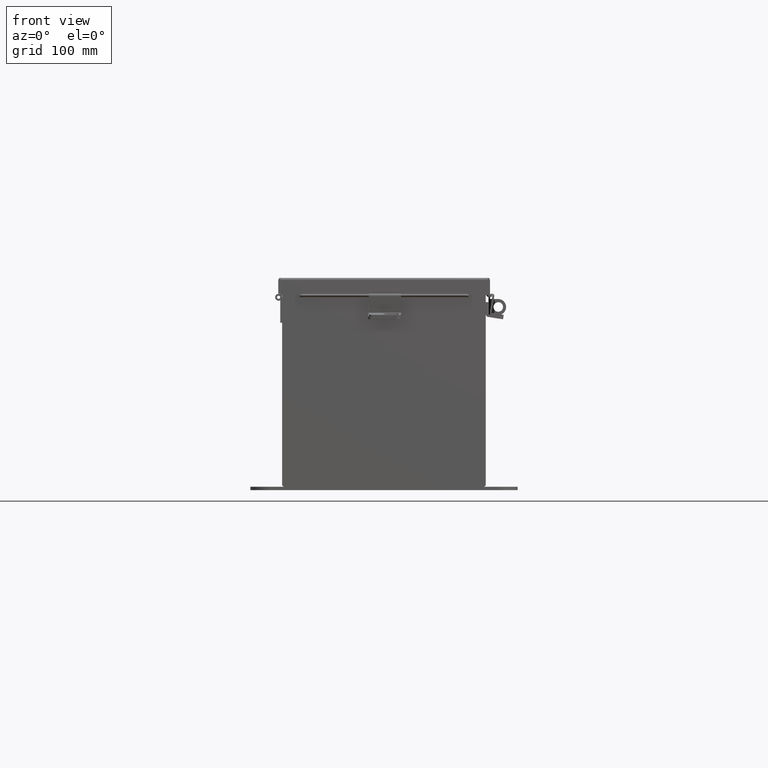
[diagram: clean part render]
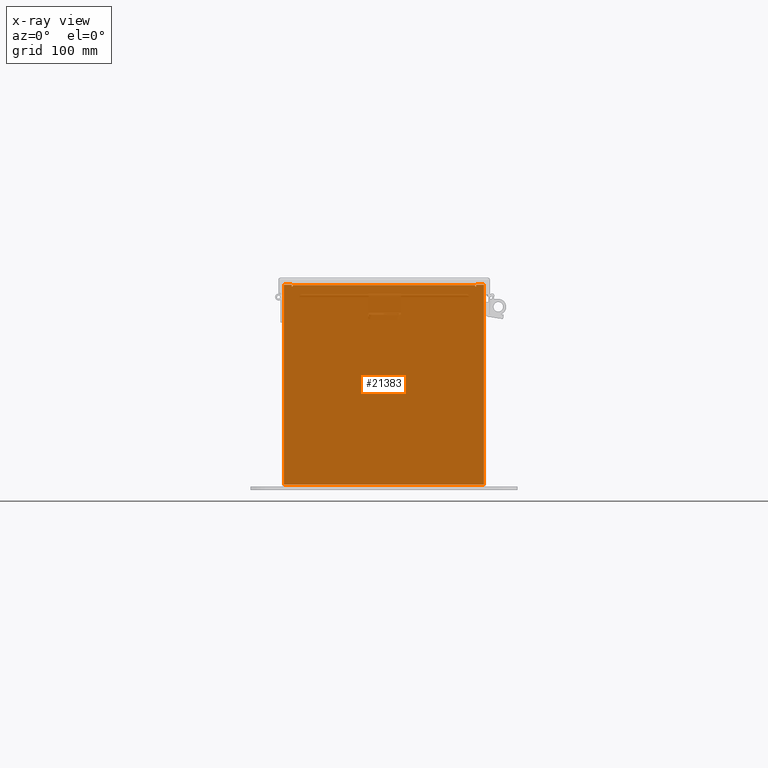
[diagram: x-ray — body ghosted, one internal face saturated and labeled with its STEP entity id]
A machine part, front view, then the same camera in x-ray: the body is ghosted and one INTERNAL B-rep face — a face not visible from any outside direction — is saturated and labeled: STEP entity #21383.
In plain terms, the highlighted planar face has unit normal (0, -1, 0).
Its self-contained STEP definition (entity closure, byte-faithful):
#64 = VECTOR ( 'NONE', #7215, 39.37007874015748100 ) ;
#494 = ORIENTED_EDGE ( 'NONE', *, *, #7579, .F. ) ;
#500 = EDGE_CURVE ( 'NONE', #8190, #19692, #17148, .T. ) ;
#2068 = VERTEX_POINT ( 'NONE', #6929 ) ;
#2234 = VERTEX_POINT ( 'NONE', #16511 ) ;
#2426 = VERTEX_POINT ( 'NONE', #19119 ) ;
#2575 = VERTEX_POINT ( 'NONE', #3796 ) ;
#2629 = AXIS2_PLACEMENT_3D ( 'NONE', #18374, #7913, #20153 ) ;
#3322 = PLANE ( 'NONE',  #22705 ) ;
#3330 = VECTOR ( 'NONE', #19097, 39.37007874015748100 ) ;
#3796 = CARTESIAN_POINT ( 'NONE',  ( 3.582299999999999200, -0.07470000000000015500, 3.874949999999998300 ) ) ;
#4166 = DIRECTION ( 'NONE',  ( 0.0000000000000000000, -1.000000000000000000, 0.0000000000000000000 ) ) ;
#4931 = DIRECTION ( 'NONE',  ( 0.0000000000000000000, 0.0000000000000000000, 1.000000000000000000 ) ) ;
#5062 = CARTESIAN_POINT ( 'NONE',  ( 0.0000000000000000000, -0.07470000000000015500, 0.0000000000000000000 ) ) ;
#5250 = ORIENTED_EDGE ( 'NONE', *, *, #15562, .F. ) ;
#5334 = LINE ( 'NONE', #6962, #14113 ) ;
#5339 = LINE ( 'NONE', #17638, #10028 ) ;
#5465 = CARTESIAN_POINT ( 'NONE',  ( 3.582299999999999200, -0.07469999999999797600, 3.912299999999999700 ) ) ;
#5472 = DIRECTION ( 'NONE',  ( 1.000000000000000000, 0.0000000000000000000, 0.0000000000000000000 ) ) ;
#5660 = CARTESIAN_POINT ( 'NONE',  ( 3.925299999999999100, -0.07470000000000015500, -3.925300000000000500 ) ) ;
#5798 = ORIENTED_EDGE ( 'NONE', *, *, #18843, .F. ) ;
#5801 = CARTESIAN_POINT ( 'NONE',  ( -3.619650000000000500, -0.07470000000000015500, 3.925299999999999600 ) ) ;
#5839 = VERTEX_POINT ( 'NONE', #11103 ) ;
#6447 = CARTESIAN_POINT ( 'NONE',  ( -3.925300000000000500, -0.07470000000000015500, 3.925299999999999600 ) ) ;
#6467 = ORIENTED_EDGE ( 'NONE', *, *, #17652, .F. ) ;
#6552 = FACE_OUTER_BOUND ( 'NONE', #7386, .T. ) ;
#6789 = ORIENTED_EDGE ( 'NONE', *, *, #11948, .F. ) ;
#6836 = DIRECTION ( 'NONE',  ( 0.0000000000000000000, -0.0000000000000000000, -1.000000000000000000 ) ) ;
#6929 = CARTESIAN_POINT ( 'NONE',  ( 3.619650000000000500, -0.07470000000000015500, 3.925299999999999600 ) ) ;
#6962 = CARTESIAN_POINT ( 'NONE',  ( 3.925299999999999100, -0.07470000000000015500, 3.925299999999999600 ) ) ;
#7215 = DIRECTION ( 'NONE',  ( 0.0000000000000000000, 0.0000000000000000000, -1.000000000000000000 ) ) ;
#7268 = ORIENTED_EDGE ( 'NONE', *, *, #9869, .F. ) ;
#7386 = EDGE_LOOP ( 'NONE', ( #6467, #6789, #19992, #14808, #5798, #5250, #7268, #8178, #8390, #14871, #494, #8502 ) ) ;
#7579 = EDGE_CURVE ( 'NONE', #15131, #12522, #5339, .T. ) ;
#7668 = CARTESIAN_POINT ( 'NONE',  ( -3.925300000000000500, -0.07470000000000015500, 3.925299999999999600 ) ) ;
#7913 = DIRECTION ( 'NONE',  ( 0.0000000000000000000, -1.000000000000000000, 0.0000000000000000000 ) ) ;
#8178 = ORIENTED_EDGE ( 'NONE', *, *, #11017, .F. ) ;
#8190 = VERTEX_POINT ( 'NONE', #20130 ) ;
#8390 = ORIENTED_EDGE ( 'NONE', *, *, #21039, .F. ) ;
#8502 = ORIENTED_EDGE ( 'NONE', *, *, #18728, .F. ) ;
#9209 = VECTOR ( 'NONE', #18696, 39.37007874015748100 ) ;
#9417 = LINE ( 'NONE', #5465, #64 ) ;
#9869 = EDGE_CURVE ( 'NONE', #2068, #5839, #20659, .T. ) ;
#9914 = CARTESIAN_POINT ( 'NONE',  ( -3.619650000000000500, -0.07470000000000015500, 3.874949999999998300 ) ) ;
#10028 = VECTOR ( 'NONE', #5472, 39.37007874015748100 ) ;
#10498 = VECTOR ( 'NONE', #4931, 39.37007874015748100 ) ;
#11017 = EDGE_CURVE ( 'NONE', #2234, #2068, #12625, .T. ) ;
#11070 = DIRECTION ( 'NONE',  ( 1.000000000000000000, 0.0000000000000000000, 0.0000000000000000000 ) ) ;
#11103 = CARTESIAN_POINT ( 'NONE',  ( 3.925299999999999100, -0.07470000000000015500, 3.925299999999999600 ) ) ;
#11303 = VECTOR ( 'NONE', #11070, 39.37007874015748100 ) ;
#11499 = VERTEX_POINT ( 'NONE', #15035 ) ;
#11948 = EDGE_CURVE ( 'NONE', #19692, #19243, #16694, .T. ) ;
#12035 = VECTOR ( 'NONE', #19818, 39.37007874015748100 ) ;
#12503 = DIRECTION ( 'NONE',  ( -1.000000000000000000, -0.0000000000000000000, -0.0000000000000000000 ) ) ;
#12522 = VERTEX_POINT ( 'NONE', #20996 ) ;
#12625 = LINE ( 'NONE', #17265, #3330 ) ;
#12845 = CARTESIAN_POINT ( 'NONE',  ( -3.925300000000000500, -0.07470000000000015500, 3.925299999999999600 ) ) ;
#12892 = CARTESIAN_POINT ( 'NONE',  ( -3.582300000000000000, -0.07470000000000015500, 3.912299999999999700 ) ) ;
#12959 = VECTOR ( 'NONE', #12503, 39.37007874015748100 ) ;
#13319 = LINE ( 'NONE', #6447, #9209 ) ;
#13518 = LINE ( 'NONE', #19499, #12959 ) ;
#14113 = VECTOR ( 'NONE', #19233, 39.37007874015748100 ) ;
#14657 = CARTESIAN_POINT ( 'NONE',  ( 3.600974999999999100, -0.07469999999999797600, 3.874949999999998300 ) ) ;
#14808 = ORIENTED_EDGE ( 'NONE', *, *, #17189, .F. ) ;
#14871 = ORIENTED_EDGE ( 'NONE', *, *, #18836, .F. ) ;
#15035 = CARTESIAN_POINT ( 'NONE',  ( -3.582300000000000000, -0.07470000000000015500, 3.874949999999998300 ) ) ;
#15131 = VERTEX_POINT ( 'NONE', #12892 ) ;
#15165 = LINE ( 'NONE', #15277, #10498 ) ;
#15277 = CARTESIAN_POINT ( 'NONE',  ( -3.582300000000000000, -0.07469999999999797600, 3.874949999999998300 ) ) ;
#15562 = EDGE_CURVE ( 'NONE', #5839, #19576, #5334, .T. ) ;
#16420 = DIRECTION ( 'NONE',  ( 0.0000000000000000000, 0.0000000000000000000, -1.000000000000000000 ) ) ;
#16511 = CARTESIAN_POINT ( 'NONE',  ( 3.619649999999999100, -0.07470000000000015500, 3.874949999999998300 ) ) ;
#16694 = LINE ( 'NONE', #5801, #12035 ) ;
#17148 = LINE ( 'NONE', #7668, #17696 ) ;
#17189 = EDGE_CURVE ( 'NONE', #2426, #8190, #13319, .T. ) ;
#17227 = AXIS2_PLACEMENT_3D ( 'NONE', #14657, #4166, #16420 ) ;
#17265 = CARTESIAN_POINT ( 'NONE',  ( 3.619649999999999100, -0.07469999999999797600, 3.874949999999998300 ) ) ;
#17316 = DIRECTION ( 'NONE',  ( 0.0000000000000000000, -1.000000000000000000, 0.0000000000000000000 ) ) ;
#17638 = CARTESIAN_POINT ( 'NONE',  ( -3.582300000000000000, -0.07469999999999797600, 3.912299999999999700 ) ) ;
#17652 = EDGE_CURVE ( 'NONE', #19243, #11499, #18481, .T. ) ;
#17696 = VECTOR ( 'NONE', #19909, 39.37007874015748100 ) ;
#17790 = CIRCLE ( 'NONE', #17227, 0.01867500000000003900 ) ;
#18374 = CARTESIAN_POINT ( 'NONE',  ( -3.600975000000000000, -0.07469999999999797600, 3.874949999999998300 ) ) ;
#18434 = CARTESIAN_POINT ( 'NONE',  ( -3.619650000000000500, -0.07470000000000015500, 3.925299999999999600 ) ) ;
#18481 = CIRCLE ( 'NONE', #2629, 0.01867500000000003900 ) ;
#18696 = DIRECTION ( 'NONE',  ( -0.0000000000000000000, -0.0000000000000000000, 1.000000000000000000 ) ) ;
#18728 = EDGE_CURVE ( 'NONE', #11499, #15131, #15165, .T. ) ;
#18836 = EDGE_CURVE ( 'NONE', #12522, #2575, #9417, .T. ) ;
#18843 = EDGE_CURVE ( 'NONE', #19576, #2426, #13518, .T. ) ;
#19097 = DIRECTION ( 'NONE',  ( 2.170286390199978800E-014, -1.186875369640613200E-014, 1.000000000000000000 ) ) ;
#19119 = CARTESIAN_POINT ( 'NONE',  ( -3.925300000000000500, -0.07470000000000015500, -3.925300000000000500 ) ) ;
#19233 = DIRECTION ( 'NONE',  ( 0.0000000000000000000, 0.0000000000000000000, -1.000000000000000000 ) ) ;
#19243 = VERTEX_POINT ( 'NONE', #9914 ) ;
#19499 = CARTESIAN_POINT ( 'NONE',  ( -3.925300000000000500, -0.07470000000000015500, -3.925300000000000500 ) ) ;
#19576 = VERTEX_POINT ( 'NONE', #5660 ) ;
#19692 = VERTEX_POINT ( 'NONE', #18434 ) ;
#19818 = DIRECTION ( 'NONE',  ( 0.0000000000000000000, 1.186875369640613200E-014, -1.000000000000000000 ) ) ;
#19909 = DIRECTION ( 'NONE',  ( 1.000000000000000000, 0.0000000000000000000, 0.0000000000000000000 ) ) ;
#19992 = ORIENTED_EDGE ( 'NONE', *, *, #500, .F. ) ;
#20130 = CARTESIAN_POINT ( 'NONE',  ( -3.925300000000000500, -0.07470000000000015500, 3.925299999999999600 ) ) ;
#20153 = DIRECTION ( 'NONE',  ( 0.0000000000000000000, 0.0000000000000000000, -1.000000000000000000 ) ) ;
#20659 = LINE ( 'NONE', #12845, #11303 ) ;
#20996 = CARTESIAN_POINT ( 'NONE',  ( 3.582299999999999200, -0.07470000000000015500, 3.912299999999999700 ) ) ;
#21039 = EDGE_CURVE ( 'NONE', #2575, #2234, #17790, .T. ) ;
#21383 = ADVANCED_FACE ( 'NONE', ( #6552 ), #3322, .T. ) ;
#22705 = AXIS2_PLACEMENT_3D ( 'NONE', #5062, #17316, #6836 ) ;